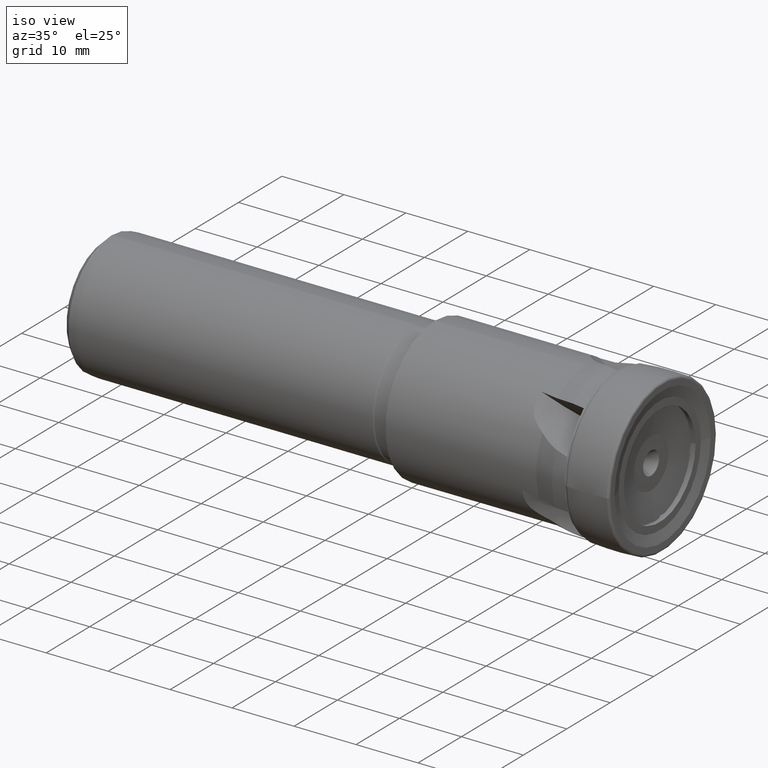
[diagram: clean part render]
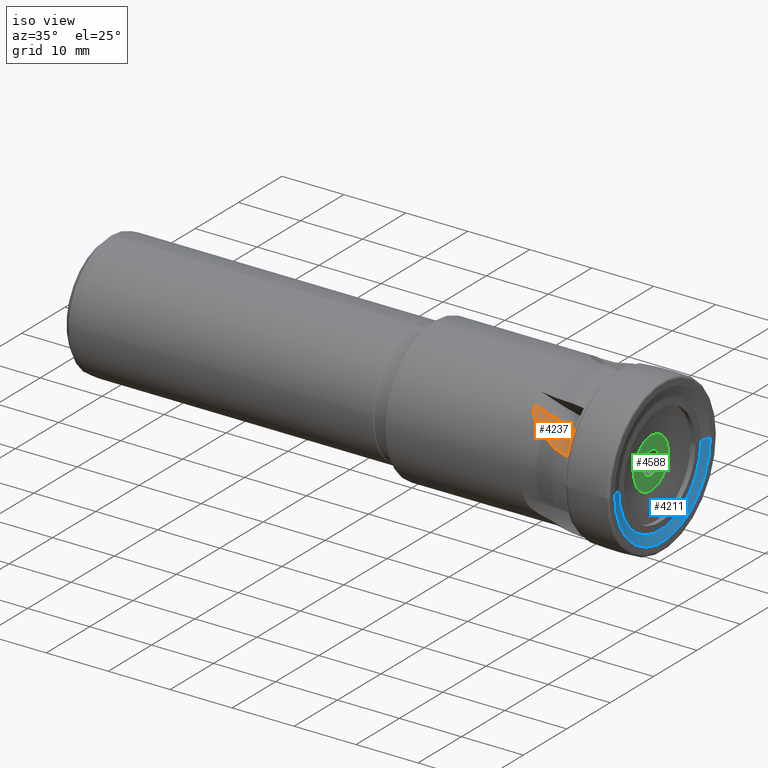
[diagram: same view with three faces highlighted in distinct colors, each labeled with its STEP entity id]
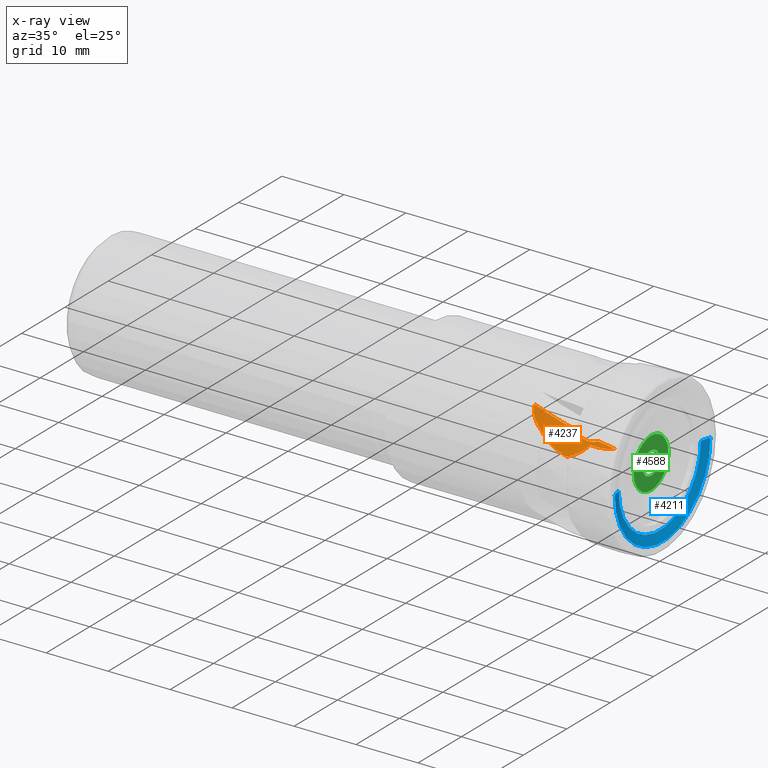
[diagram: x-ray of the same camera — body ghosted, the three highlighted faces saturated]
A machine part, iso view with three faces highlighted in distinct colors.
The next image is the same camera in x-ray (body ghosted, the three faces saturated) — at least one of them is partly hidden behind the body in this view.
Their STEP definitions:

[orange] entity #4237 — the highlighted toroidal blend (fillet) surface has major radius 13 mm and minor (blend) radius 7 mm.
#3 = B_SPLINE_CURVE_WITH_KNOTS ( 'NONE', 3,
 ( #3095, #3094, #3124, #3125, #3126, #3127, #3128, #3129, #3130, #3131, #3132, #3133, #3134, #3135 ),
 .UNSPECIFIED., .F., .F.,
 ( 4, 2, 2, 2, 2, 2, 4 ),
 ( 0.0006965183084208086700, 0.001473880017827116000, 0.002251241727233423400, 0.002639922581936576900, 0.003028603436639731300, 0.003417284291342884700, 0.003805965146046039100 ),
 .UNSPECIFIED. ) ;
#45 = B_SPLINE_CURVE_WITH_KNOTS ( 'NONE', 3,
 ( #1269, #1285, #2451, #2452, #2453, #2454, #2455, #2456 ),
 .UNSPECIFIED., .F., .F.,
 ( 4, 2, 2, 4 ),
 ( 9.251588940763252000E-007, 0.001955833354679461700, 0.002933287452572156100, 0.003910741550464851300 ),
 .UNSPECIFIED. ) ;
#72 = B_SPLINE_CURVE_WITH_KNOTS ( 'NONE', 3,
 ( #248, #247, #253, #254, #255, #256, #257, #258, #259, #260, #261, #262 ),
 .UNSPECIFIED., .F., .F.,
 ( 4, 2, 2, 2, 2, 4 ),
 ( 0.001630825770625034900, 0.002170971863854081900, 0.002711117957083126600, 0.003791410143541216500, 0.004871702329999306000, 0.005951994516457396300 ),
 .UNSPECIFIED. ) ;
#74 = B_SPLINE_CURVE_WITH_KNOTS ( 'NONE', 3,
 ( #1773, #1772, #1778, #1779, #1780, #1781, #1782, #1783, #1784, #1785 ),
 .UNSPECIFIED., .F., .F.,
 ( 4, 2, 2, 2, 4 ),
 ( 0.001004298949692540400, 0.001927792330029714700, 0.002851285710366888900, 0.003774779090704063900, 0.004698272471041238000 ),
 .UNSPECIFIED. ) ;
#88 = B_SPLINE_CURVE_WITH_KNOTS ( 'NONE', 3,
 ( #1286, #1275, #650, #633 ),
 .UNSPECIFIED., .F., .F.,
 ( 4, 4 ),
 ( 2.097759841187532800E-007, 0.002069371821690153000 ),
 .UNSPECIFIED. ) ;
#106 = B_SPLINE_CURVE_WITH_KNOTS ( 'NONE', 3,
 ( #1273, #1267, #1268, #1274 ),
 .UNSPECIFIED., .F., .F.,
 ( 4, 4 ),
 ( 0.0001300082817460148700, 0.0006965183084208086700 ),
 .UNSPECIFIED. ) ;
#136 = B_SPLINE_CURVE_WITH_KNOTS ( 'NONE', 3,
 ( #1281, #1276, #1277, #1282, #1283, #1284 ),
 .UNSPECIFIED., .F., .F.,
 ( 4, 2, 4 ),
 ( 2.535729541998996000E-007, 0.001662688858475574500, 0.003325124143996949400 ),
 .UNSPECIFIED. ) ;
#161 = EDGE_CURVE ( 'NONE', #4814, #4794, #1632, .T. ) ;
#162 = EDGE_CURVE ( 'NONE', #1074, #5154, #106, .T. ) ;
#163 = EDGE_CURVE ( 'NONE', #1091, #1074, #1601, .T. ) ;
#164 = EDGE_CURVE ( 'NONE', #1145, #1168, #136, .T. ) ;
#165 = EDGE_CURVE ( 'NONE', #1168, #4818, #88, .T. ) ;
#166 = EDGE_CURVE ( 'NONE', #4795, #4818, #45, .T. ) ;
#247 = CARTESIAN_POINT ( 'NONE',  ( -14.45778958392369300, -8.231755436023840700, 7.989452864482509600 ) ) ;
#248 = CARTESIAN_POINT ( 'NONE',  ( -14.48066843762626000, -8.104670624404601400, 8.116354727949781600 ) ) ;
#253 = CARTESIAN_POINT ( 'NONE',  ( -14.41646614829489800, -8.355087875864137800, 7.860208163096625200 ) ) ;
#254 = CARTESIAN_POINT ( 'NONE',  ( -14.30449851652807200, -8.586559678220444500, 7.606665410873647600 ) ) ;
#255 = CARTESIAN_POINT ( 'NONE',  ( -14.23321703471346700, -8.696598818194381400, 7.480382361106485700 ) ) ;
#256 = CARTESIAN_POINT ( 'NONE',  ( -13.98343451761828100, -9.007159456698724800, 7.108880616067073000 ) ) ;
#257 = CARTESIAN_POINT ( 'NONE',  ( -13.77450223166024800, -9.184122177347392200, 6.876529234427437100 ) ) ;
#258 = CARTESIAN_POINT ( 'NONE',  ( -13.29961948439127400, -9.499488668286678800, 6.433853396019550500 ) ) ;
#259 = CARTESIAN_POINT ( 'NONE',  ( -13.03460942103069300, -9.636176900599924300, 6.225492918764879300 ) ) ;
#260 = CARTESIAN_POINT ( 'NONE',  ( -12.47797567620930100, -9.875483016876598800, 5.838450353015705500 ) ) ;
#261 = CARTESIAN_POINT ( 'NONE',  ( -12.18411534820783300, -9.979251630880652300, 5.657983624855432900 ) ) ;
#262 = CARTESIAN_POINT ( 'NONE',  ( -11.87817552344830000, -10.07171552601010200, 5.488300863029199800 ) ) ;
#566 = EDGE_CURVE ( 'NONE', #5154, #4814, #3, .T. ) ;
#633 = CARTESIAN_POINT ( 'NONE',  ( -6.999999999999998200, -11.37217227474526400, 3.759548377600043800 ) ) ;
#650 = CARTESIAN_POINT ( 'NONE',  ( -7.675347413915264200, -11.32692819681325200, 3.896406158635774600 ) ) ;
#673 = ORIENTED_EDGE ( 'NONE', *, *, #164, .T. ) ;
#719 = ORIENTED_EDGE ( 'NONE', *, *, #166, .F. ) ;
#768 = ORIENTED_EDGE ( 'NONE', *, *, #165, .T. ) ;
#828 = TOROIDAL_SURFACE ( 'NONE', #831, 13.00000000000000000, 7.000000000000000900 ) ;
#831 = AXIS2_PLACEMENT_3D ( 'NONE', #1442, #1439, #1444 ) ;
#1074 = VERTEX_POINT ( 'NONE', #3487 ) ;
#1091 = VERTEX_POINT ( 'NONE', #3501 ) ;
#1145 = VERTEX_POINT ( 'NONE', #3509 ) ;
#1168 = VERTEX_POINT ( 'NONE', #3528 ) ;
#1267 = CARTESIAN_POINT ( 'NONE',  ( -8.311444367282810200, -7.098468259669418900, 5.378559950573888100 ) ) ;
#1268 = CARTESIAN_POINT ( 'NONE',  ( -8.171311392352501800, -7.183822089713443000, 5.273624932613654600 ) ) ;
#1269 = CARTESIAN_POINT ( 'NONE',  ( -5.782774584074418000, -7.736272988897417800, 4.390089684983238700 ) ) ;
#1270 = CARTESIAN_POINT ( 'NONE',  ( -3.327464330255360800, -18.78673306103443300, 20.82460323981273500 ) ) ;
#1271 = DIRECTION ( 'NONE',  ( -0.1045284632676401800, -0.8045851146309206400, -0.5845653031794255700 ) ) ;
#1272 = DIRECTION ( 'NONE',  ( -0.9945218953682747300, 0.08456530317941869700, 0.06144028915351390500 ) ) ;
#1273 = CARTESIAN_POINT ( 'NONE',  ( -8.412092903806918500, -6.989268939088601600, 5.495989716064932500 ) ) ;
#1274 = CARTESIAN_POINT ( 'NONE',  ( -8.018189000824628800, -7.248300009369812900, 5.183811142230139200 ) ) ;
#1275 = CARTESIAN_POINT ( 'NONE',  ( -8.342420719709394900, -11.26962976718663300, 4.062084860475976300 ) ) ;
#1276 = CARTESIAN_POINT ( 'NONE',  ( -11.44110176834704300, -10.30333804559785300, 5.224308891651950200 ) ) ;
#1277 = CARTESIAN_POINT ( 'NONE',  ( -10.97731393154533600, -10.50459410912704600, 4.995138154037232600 ) ) ;
#1278 = CARTESIAN_POINT ( 'NONE',  ( -3.327464330255360800, -18.78673306103443300, 20.82460323981273500 ) ) ;
#1279 = DIRECTION ( 'NONE',  ( -0.1045284632676401800, -0.8045851146309206400, -0.5845653031794255700 ) ) ;
#1280 = DIRECTION ( 'NONE',  ( -0.9945218953682747300, 0.08456530317941869700, 0.06144028915351390500 ) ) ;
#1281 = CARTESIAN_POINT ( 'NONE',  ( -11.87817552344830000, -10.07171552601010200, 5.488300863029199800 ) ) ;
#1282 = CARTESIAN_POINT ( 'NONE',  ( -10.01390134451105100, -10.87271514683261100, 4.589307230264745700 ) ) ;
#1283 = CARTESIAN_POINT ( 'NONE',  ( -9.513968278218435200, -11.03915271195028100, 4.412978627216039000 ) ) ;
#1284 = CARTESIAN_POINT ( 'NONE',  ( -9.000000000000026600, -11.19454253962497400, 4.259427611607776500 ) ) ;
#1285 = CARTESIAN_POINT ( 'NONE',  ( -5.923666390334568100, -8.313892074964613200, 4.095106702790179300 ) ) ;
#1286 = CARTESIAN_POINT ( 'NONE',  ( -9.000000000000026600, -11.19454253962497400, 4.259427611607776500 ) ) ;
#1437 = FACE_OUTER_BOUND ( 'NONE', #4415, .T. ) ;
#1439 = DIRECTION ( 'NONE',  ( -0.1045284632676401900, -0.8045851146309207500, -0.5845653031794256800 ) ) ;
#1442 = CARTESIAN_POINT ( 'NONE',  ( -3.327464330255360800, -18.78673306103443300, 20.82460323981273100 ) ) ;
#1444 = DIRECTION ( 'NONE',  ( -0.9945218953682747300, 0.08456530317941871000, 0.06144028915351391200 ) ) ;
#1601 = CIRCLE ( 'NONE', #1673, 20.00000000000000400 ) ;
#1632 = CIRCLE ( 'NONE', #1670, 20.00000000000000400 ) ;
#1670 = AXIS2_PLACEMENT_3D ( 'NONE', #1270, #1271, #1272 ) ;
#1673 = AXIS2_PLACEMENT_3D ( 'NONE', #1278, #1279, #1280 ) ;
#1772 = CARTESIAN_POINT ( 'NONE',  ( -2.437496381767337600, -7.243119202868805400, 4.513598980747242500 ) ) ;
#1773 = CARTESIAN_POINT ( 'NONE',  ( -2.154621092426826300, -7.151210636062478100, 4.599959741804687100 ) ) ;
#1778 = CARTESIAN_POINT ( 'NONE',  ( -2.734729091150784900, -7.318937788473816900, 4.450629432531555600 ) ) ;
#1779 = CARTESIAN_POINT ( 'NONE',  ( -3.330609682070807800, -7.447995091423151400, 4.360039277410236600 ) ) ;
#1780 = CARTESIAN_POINT ( 'NONE',  ( -3.632391640252596400, -7.501832565776070700, 4.331889424424220500 ) ) ;
#1781 = CARTESIAN_POINT ( 'NONE',  ( -4.241817833319851500, -7.594070837270288100, 4.303315735769754900 ) ) ;
#1782 = CARTESIAN_POINT ( 'NONE',  ( -4.550464287112073500, -7.632453204694828100, 4.303070534199571600 ) ) ;
#1783 = CARTESIAN_POINT ( 'NONE',  ( -5.166936348556663300, -7.694929540696265700, 4.327934930547146000 ) ) ;
#1784 = CARTESIAN_POINT ( 'NONE',  ( -5.474953697238337500, -7.719082778519829300, 4.352962473734542900 ) ) ;
#1785 = CARTESIAN_POINT ( 'NONE',  ( -5.782774584074418000, -7.736272988897417800, 4.390089684983238700 ) ) ;
#1820 = CARTESIAN_POINT ( 'NONE',  ( -2.154621092426826300, -7.151210636062478100, 4.599959741804687100 ) ) ;
#1821 = CARTESIAN_POINT ( 'NONE',  ( -5.782774584074418000, -7.736272988897417800, 4.390089684983238700 ) ) ;
#1837 = CARTESIAN_POINT ( 'NONE',  ( -5.114364647375847300, -6.926620464242343900, 4.820081489754459300 ) ) ;
#1841 = CARTESIAN_POINT ( 'NONE',  ( -6.999999999999998200, -11.37217227474526400, 3.759548377600043800 ) ) ;
#1938 = CARTESIAN_POINT ( 'NONE',  ( -8.018189000824628800, -7.248300009369812900, 5.183811142230139200 ) ) ;
#2321 = ORIENTED_EDGE ( 'NONE', *, *, #4685, .F. ) ;
#2322 = ORIENTED_EDGE ( 'NONE', *, *, #161, .F. ) ;
#2323 = ORIENTED_EDGE ( 'NONE', *, *, #566, .F. ) ;
#2324 = ORIENTED_EDGE ( 'NONE', *, *, #162, .F. ) ;
#2325 = ORIENTED_EDGE ( 'NONE', *, *, #163, .F. ) ;
#2326 = ORIENTED_EDGE ( 'NONE', *, *, #3310, .T. ) ;
#2451 = CARTESIAN_POINT ( 'NONE',  ( -6.108622797274575700, -8.908426367928994300, 3.902320262086739000 ) ) ;
#2452 = CARTESIAN_POINT ( 'NONE',  ( -6.423273282098130600, -9.828503122388015700, 3.746330721474171500 ) ) ;
#2453 = CARTESIAN_POINT ( 'NONE',  ( -6.535037277951033700, -10.14074693574129600, 3.717338366161001300 ) ) ;
#2454 = CARTESIAN_POINT ( 'NONE',  ( -6.763248797679555200, -10.75834047399199100, 3.705163288834854000 ) ) ;
#2455 = CARTESIAN_POINT ( 'NONE',  ( -6.880413601835587500, -11.06580196971703400, 3.721496595222481200 ) ) ;
#2456 = CARTESIAN_POINT ( 'NONE',  ( -6.999999999999998200, -11.37217227474526400, 3.759548377600043800 ) ) ;
#3094 = CARTESIAN_POINT ( 'NONE',  ( -7.808075360426848900, -7.336776229530007900, 5.060569190043344700 ) ) ;
#3095 = CARTESIAN_POINT ( 'NONE',  ( -8.018189000824628800, -7.248300009369812900, 5.183811142230139200 ) ) ;
#3124 = CARTESIAN_POINT ( 'NONE',  ( -7.567490281066274500, -7.389330011294115200, 4.961550846002452000 ) ) ;
#3125 = CARTESIAN_POINT ( 'NONE',  ( -7.076946564116528100, -7.439429713047417200, 4.808250720576341000 ) ) ;
#3126 = CARTESIAN_POINT ( 'NONE',  ( -6.819269098832397600, -7.437410170501319600, 4.751888116278697900 ) ) ;
#3127 = CARTESIAN_POINT ( 'NONE',  ( -6.436889188297140400, -7.397229020373790900, 4.700485711648475700 ) ) ;
#3128 = CARTESIAN_POINT ( 'NONE',  ( -6.309760507230572900, -7.377668106458953500, 4.688782259314910700 ) ) ;
#3129 = CARTESIAN_POINT ( 'NONE',  ( -6.056182304986816000, -7.325491824896597700, 4.677089238430966100 ) ) ;
#3130 = CARTESIAN_POINT ( 'NONE',  ( -5.928873037157297100, -7.292566245277875200, 4.677177454397844200 ) ) ;
#3131 = CARTESIAN_POINT ( 'NONE',  ( -5.681892610544391400, -7.213552489255945900, 4.691065227887162500 ) ) ;
#3132 = CARTESIAN_POINT ( 'NONE',  ( -5.561674544541375600, -7.167491477188785400, 4.704711676574985000 ) ) ;
#3133 = CARTESIAN_POINT ( 'NONE',  ( -5.329235984041781100, -7.059441985918260400, 4.748694737468675900 ) ) ;
#3134 = CARTESIAN_POINT ( 'NONE',  ( -5.216883340187768800, -6.997253713609080000, 4.779185072098746500 ) ) ;
#3135 = CARTESIAN_POINT ( 'NONE',  ( -5.114364647375847300, -6.926620464242343900, 4.820081489754459300 ) ) ;
#3310 = EDGE_CURVE ( 'NONE', #1091, #1145, #72, .T. ) ;
#3487 = CARTESIAN_POINT ( 'NONE',  ( -8.412092903806918500, -6.989268939088601600, 5.495989716064932500 ) ) ;
#3501 = CARTESIAN_POINT ( 'NONE',  ( -14.48066843762626000, -8.104670624404601400, 8.116354727949781600 ) ) ;
#3509 = CARTESIAN_POINT ( 'NONE',  ( -11.87817552344830000, -10.07171552601010200, 5.488300863029199800 ) ) ;
#3528 = CARTESIAN_POINT ( 'NONE',  ( -9.000000000000026600, -11.19454253962497400, 4.259427611607776500 ) ) ;
#4237 = ADVANCED_FACE ( 'NONE', ( #1437 ), #828, .F. ) ;
#4415 = EDGE_LOOP ( 'NONE', ( #2321, #2322, #2323, #2324, #2325, #2326, #673, #768, #719 ) ) ;
#4685 = EDGE_CURVE ( 'NONE', #4794, #4795, #74, .T. ) ;
#4794 = VERTEX_POINT ( 'NONE', #1820 ) ;
#4795 = VERTEX_POINT ( 'NONE', #1821 ) ;
#4814 = VERTEX_POINT ( 'NONE', #1837 ) ;
#4818 = VERTEX_POINT ( 'NONE', #1841 ) ;
#5154 = VERTEX_POINT ( 'NONE', #1938 ) ;

[blue] entity #4211 — the highlighted conical surface has half-angle 73.85 deg.
#498 = EDGE_CURVE ( 'NONE', #4788, #4826, #1603, .T. ) ;
#508 = EDGE_CURVE ( 'NONE', #4820, #4837, #1643, .T. ) ;
#515 = EDGE_CURVE ( 'NONE', #4788, #4820, #3970, .T. ) ;
#579 = EDGE_CURVE ( 'NONE', #4826, #4837, #3177, .T. ) ;
#791 = CONICAL_SURFACE ( 'NONE', #792, 11.02945708101182700, 1.288927928314260100 ) ;
#792 = AXIS2_PLACEMENT_3D ( 'NONE', #1321, #1323, #1319 ) ;
#1319 = DIRECTION ( 'NONE',  ( -1.228757413581187300E-016, 1.000000000000000000, 0.0000000000000000000 ) ) ;
#1321 = CARTESIAN_POINT ( 'NONE',  ( 0.4509237223386956000, -3.978180432082129700E-016, 0.0000000000000000000 ) ) ;
#1322 = FACE_OUTER_BOUND ( 'NONE', #5086, .T. ) ;
#1323 = DIRECTION ( 'NONE',  ( 1.000000000000000000, 1.224045464139208600E-016, -0.0000000000000000000 ) ) ;
#1588 = AXIS2_PLACEMENT_3D ( 'NONE', #3933, #3934, #3935 ) ;
#1600 = VECTOR ( 'NONE', #3985, 999.9999999999998900 ) ;
#1603 = CIRCLE ( 'NONE', #1588, 9.472283386832369700 ) ;
#1643 = CIRCLE ( 'NONE', #1660, 11.02945708101182700 ) ;
#1660 = AXIS2_PLACEMENT_3D ( 'NONE', #3961, #3962, #3963 ) ;
#1806 = CARTESIAN_POINT ( 'NONE',  ( 2.026812289457737700E-015, -9.472283386832369700, 1.255369542044757600E-015 ) ) ;
#1843 = CARTESIAN_POINT ( 'NONE',  ( 0.4509237223386969300, -11.02945708101182700, 1.358793665195852300E-015 ) ) ;
#1849 = CARTESIAN_POINT ( 'NONE',  ( -2.920888134809307800E-016, 9.472283386832369700, 0.0000000000000000000 ) ) ;
#1860 = CARTESIAN_POINT ( 'NONE',  ( 0.4509237223386942100, 11.02945708101182700, 0.0000000000000000000 ) ) ;
#3177 = LINE ( 'NONE', #3178, #4278 ) ;
#3178 = CARTESIAN_POINT ( 'NONE',  ( 0.4509237223386942100, 11.02945708101182700, 0.0000000000000000000 ) ) ;
#3179 = DIRECTION ( 'NONE',  ( 0.2781507996735206900, 0.9605374186573790700, 0.0000000000000000000 ) ) ;
#3933 = CARTESIAN_POINT ( 'NONE',  ( 8.673617379884035500E-016, -4.530131569083576400E-016, 0.0000000000000000000 ) ) ;
#3934 = DIRECTION ( 'NONE',  ( 1.000000000000000000, 1.224045464139208600E-016, -0.0000000000000000000 ) ) ;
#3935 = DIRECTION ( 'NONE',  ( -1.224045464139208600E-016, 1.000000000000000000, 0.0000000000000000000 ) ) ;
#3961 = CARTESIAN_POINT ( 'NONE',  ( 0.4509237223386956000, -3.978180432082129700E-016, 0.0000000000000000000 ) ) ;
#3962 = DIRECTION ( 'NONE',  ( 1.000000000000000000, 1.224045464139208600E-016, -0.0000000000000000000 ) ) ;
#3963 = DIRECTION ( 'NONE',  ( -1.228757413581187300E-016, 1.000000000000000000, 0.0000000000000000000 ) ) ;
#3970 = LINE ( 'NONE', #3977, #1600 ) ;
#3977 = CARTESIAN_POINT ( 'NONE',  ( 0.4509237223386969300, -11.02945708101182700, 1.350718931059424200E-015 ) ) ;
#3985 = DIRECTION ( 'NONE',  ( 0.2781507996735209700, -0.9605374186573790700, 1.176319075220020500E-016 ) ) ;
#4211 = ADVANCED_FACE ( 'NONE', ( #1322 ), #791, .F. ) ;
#4278 = VECTOR ( 'NONE', #3179, 1000.000000000000100 ) ;
#4723 = ORIENTED_EDGE ( 'NONE', *, *, #498, .F. ) ;
#4724 = ORIENTED_EDGE ( 'NONE', *, *, #515, .T. ) ;
#4725 = ORIENTED_EDGE ( 'NONE', *, *, #508, .T. ) ;
#4726 = ORIENTED_EDGE ( 'NONE', *, *, #579, .F. ) ;
#4788 = VERTEX_POINT ( 'NONE', #1806 ) ;
#4820 = VERTEX_POINT ( 'NONE', #1843 ) ;
#4826 = VERTEX_POINT ( 'NONE', #1849 ) ;
#4837 = VERTEX_POINT ( 'NONE', #1860 ) ;
#5086 = EDGE_LOOP ( 'NONE', ( #4723, #4724, #4725, #4726 ) ) ;

[green] entity #4588 — the highlighted planar face has unit normal (1, 0, -0).
#422 = CARTESIAN_POINT ( 'NONE',  ( -1.399999999999999900, 0.0000000000000000000, 0.0000000000000000000 ) ) ;
#423 = DIRECTION ( 'NONE',  ( 1.000000000000000000, -0.0000000000000000000, -0.0000000000000000000 ) ) ;
#424 = DIRECTION ( 'NONE',  ( 0.0000000000000000000, 0.0000000000000000000, -1.000000000000000000 ) ) ;
#591 = EDGE_CURVE ( 'NONE', #5139, #5123, #4292, .T. ) ;
#863 = AXIS2_PLACEMENT_3D ( 'NONE', #3763, #3762, #3769 ) ;
#1077 = VERTEX_POINT ( 'NONE', #3489 ) ;
#1156 = VERTEX_POINT ( 'NONE', #3516 ) ;
#1907 = CARTESIAN_POINT ( 'NONE',  ( -1.399999999999998600, 2.265596578422603100E-016, 1.850000000000000100 ) ) ;
#1923 = CARTESIAN_POINT ( 'NONE',  ( -1.399999999999998600, 0.0000000000000000000, -1.850000000000000100 ) ) ;
#2005 = CARTESIAN_POINT ( 'NONE',  ( -1.399999999999998600, 0.0000000000000000000, 0.0000000000000000000 ) ) ;
#2006 = DIRECTION ( 'NONE',  ( -1.000000000000000000, -0.0000000000000000000, -0.0000000000000000000 ) ) ;
#2007 = DIRECTION ( 'NONE',  ( 0.0000000000000000000, 0.0000000000000000000, 1.000000000000000000 ) ) ;
#3214 = CARTESIAN_POINT ( 'NONE',  ( -1.399999999999998600, 0.0000000000000000000, 0.0000000000000000000 ) ) ;
#3215 = DIRECTION ( 'NONE',  ( -1.000000000000000000, -0.0000000000000000000, -0.0000000000000000000 ) ) ;
#3216 = DIRECTION ( 'NONE',  ( 0.0000000000000000000, 0.0000000000000000000, 1.000000000000000000 ) ) ;
#3284 = EDGE_CURVE ( 'NONE', #1156, #1077, #4335, .T. ) ;
#3339 = EDGE_CURVE ( 'NONE', #1077, #1156, #4367, .T. ) ;
#3489 = CARTESIAN_POINT ( 'NONE',  ( -1.399999999999999900, 7.568632733261457600E-016, 4.000000000000000000 ) ) ;
#3516 = CARTESIAN_POINT ( 'NONE',  ( -1.399999999999999900, 0.0000000000000000000, -4.000000000000000000 ) ) ;
#3559 = CARTESIAN_POINT ( 'NONE',  ( -1.399999999999999900, 0.0000000000000000000, 0.0000000000000000000 ) ) ;
#3560 = DIRECTION ( 'NONE',  ( 1.000000000000000000, -0.0000000000000000000, -0.0000000000000000000 ) ) ;
#3561 = DIRECTION ( 'NONE',  ( 0.0000000000000000000, 0.0000000000000000000, -1.000000000000000000 ) ) ;
#3762 = DIRECTION ( 'NONE',  ( 1.000000000000000000, 0.0000000000000000000, -0.0000000000000000000 ) ) ;
#3763 = CARTESIAN_POINT ( 'NONE',  ( -1.399999999999999200, -1.158722531986733500E-014, 0.0000000000000000000 ) ) ;
#3764 = FACE_OUTER_BOUND ( 'NONE', #4747, .T. ) ;
#3766 = FACE_BOUND ( 'NONE', #4736, .T. ) ;
#3767 = PLANE ( 'NONE',  #863 ) ;
#3769 = DIRECTION ( 'NONE',  ( -0.0000000000000000000, 0.0000000000000000000, -1.000000000000000000 ) ) ;
#4292 = CIRCLE ( 'NONE', #4294, 1.850000000000000100 ) ;
#4294 = AXIS2_PLACEMENT_3D ( 'NONE', #3214, #3215, #3216 ) ;
#4335 = CIRCLE ( 'NONE', #4340, 4.000000000000000000 ) ;
#4340 = AXIS2_PLACEMENT_3D ( 'NONE', #3559, #3560, #3561 ) ;
#4367 = CIRCLE ( 'NONE', #4368, 4.000000000000000000 ) ;
#4368 = AXIS2_PLACEMENT_3D ( 'NONE', #422, #423, #424 ) ;
#4556 = ORIENTED_EDGE ( 'NONE', *, *, #3284, .T. ) ;
#4557 = ORIENTED_EDGE ( 'NONE', *, *, #3339, .T. ) ;
#4558 = ORIENTED_EDGE ( 'NONE', *, *, #591, .T. ) ;
#4559 = ORIENTED_EDGE ( 'NONE', *, *, #5182, .T. ) ;
#4588 = ADVANCED_FACE ( 'NONE', ( #3764, #3766 ), #3767, .T. ) ;
#4736 = EDGE_LOOP ( 'NONE', ( #4558, #4559 ) ) ;
#4747 = EDGE_LOOP ( 'NONE', ( #4556, #4557 ) ) ;
#4900 = CIRCLE ( 'NONE', #4907, 1.850000000000000100 ) ;
#4907 = AXIS2_PLACEMENT_3D ( 'NONE', #2005, #2006, #2007 ) ;
#5123 = VERTEX_POINT ( 'NONE', #1907 ) ;
#5139 = VERTEX_POINT ( 'NONE', #1923 ) ;
#5182 = EDGE_CURVE ( 'NONE', #5123, #5139, #4900, .T. ) ;